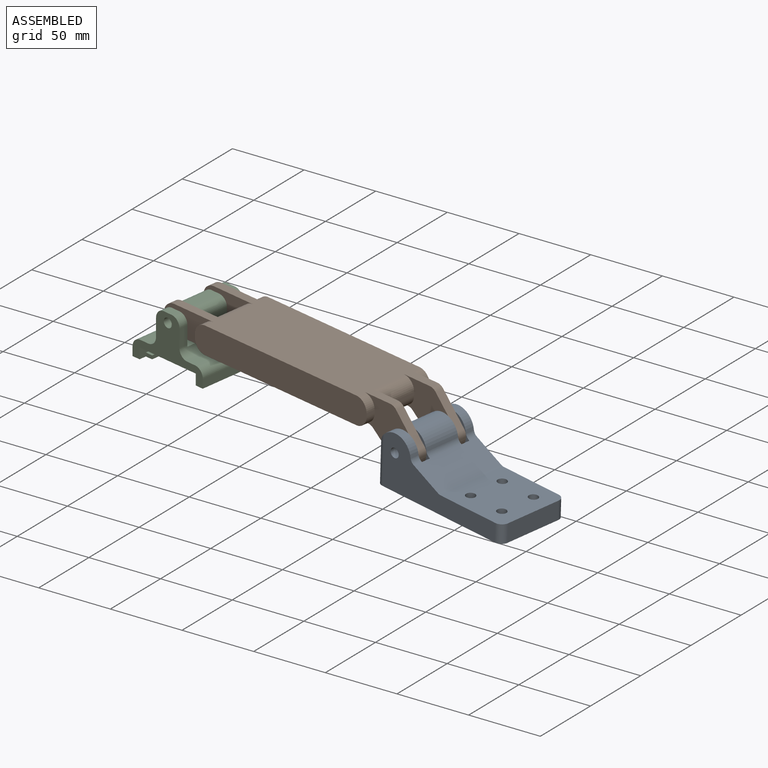
[diagram: assembled view]
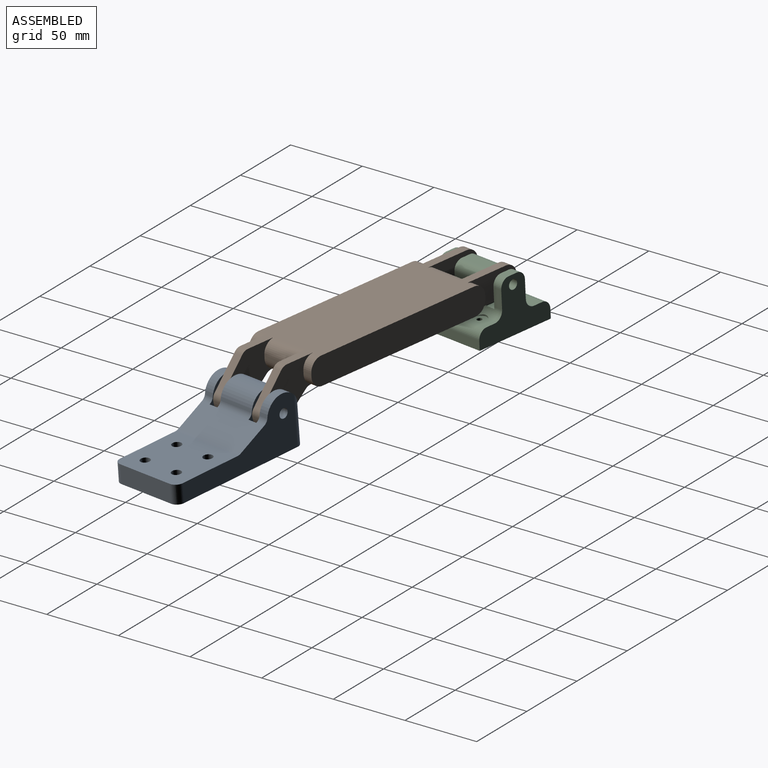
[diagram: assembled view, second angle]
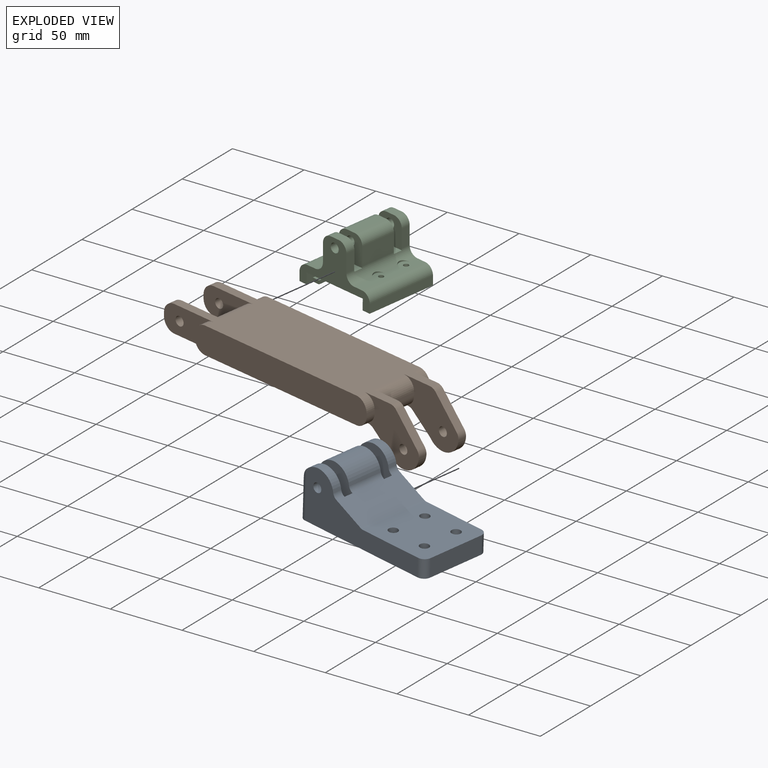
[diagram: exploded view]
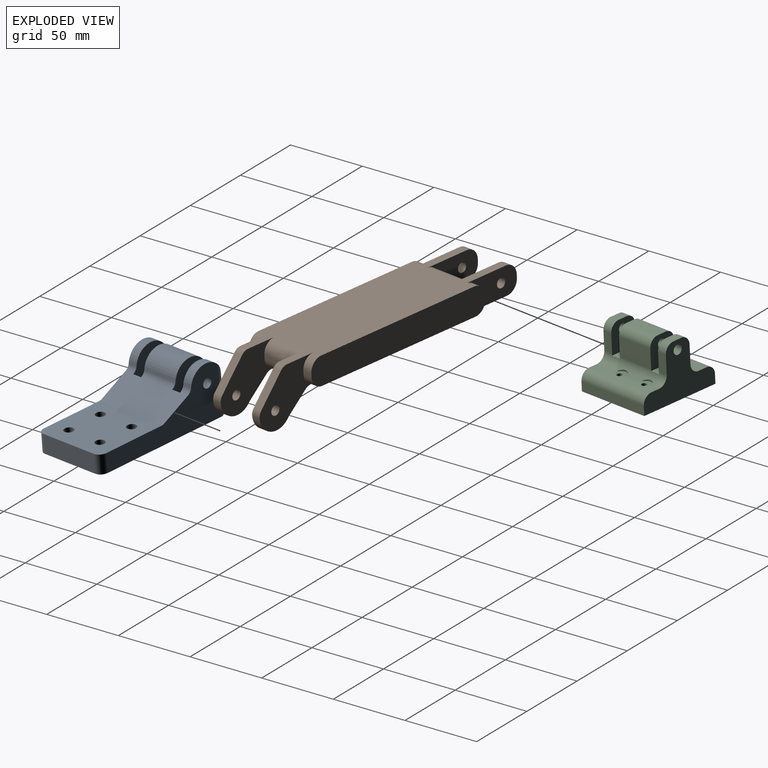
[diagram: exploded view, second angle]
ASSEMBLY  parts=3 mates=2
PART A: 32 faces, bbox 101.6x50.8x37.8 mm
  f0: cylinder r=12.7mm len=25.4mm, axis (0,1,0), area 956.6mm2, adj f4,f12,f16,f20
  f1: cylinder r=12.7mm len=25.24mm, axis (0,1,0), area 233.3mm2, adj f4,f10,f13,f21,f25
  f2: plane 50.8x20.03mm, normal (0.45,0,0.89), area 1136.4mm2, adj f9,f10,f11,f12,f13,f14,f15,f16
  f3: cylinder r=12.7mm len=25.24mm, axis (0,1,0), area 233.3mm2, adj f4,f9,f15,f22,f27
  f4: plane 48.26x12.58mm, normal (-0.99,0,0.14), area 474.3mm2, adj f0,f1,f3,f5,f11,f12,f13,f14
  f5: plane 40.64x12.7mm, normal (-1,0,0), area 516.1mm2, adj f4,f6,f25,f27
  f6: plane 101.6x50.8mm, normal (0,0,-1), area 5005.3mm2, adj f5,f7,f9,f10,f24,f25,f26,f27
  f7: plane 40.64x12.7mm, normal (1,0,0), area 516.1mm2, adj f6,f8,f24,f26
  f8: plane 50.8x49.59mm, normal (0,0,1), area 2374.4mm2, adj f7,f9,f10,f23,f24,f26,f28,f29
  f9: plane 91.44x37.76mm, normal (0,-1,0), area 1776.2mm2, adj f2,f3,f6,f8,f18,f22,f23,f26
  f10: plane 91.44x37.76mm, normal (0,1,0), area 1776.2mm2, adj f1,f2,f6,f8,f19,f21,f23,f24
  f11: cylinder r=15.88mm len=29.33mm, axis (0,1,0), area 250.1mm2, adj f2,f4,f12,f13
  f12: plane 29.33x28.6mm, normal (0,1,0), area 596.8mm2, adj f0,f2,f4,f11,f17,f20
  f13: plane 29.33x28.6mm, normal (0,-1,0), area 596.8mm2, adj f1,f2,f4,f11,f19,f21
  f14: cylinder r=15.88mm len=29.33mm, axis (0,1,0), area 250.1mm2, adj f2,f4,f15,f16
  f15: plane 29.33x28.6mm, normal (0,1,0), area 596.8mm2, adj f2,f3,f4,f14,f18,f22
  f16: plane 29.33x28.6mm, normal (0,-1,0), area 596.8mm2, adj f0,f2,f4,f14,f17,f20
  f17: cylinder r=3.26mm len=25.4mm, axis (0,1,0), area 520.9mm2, adj f12,f16
  f18: cylinder r=3.26mm len=6.53mm, axis (0,1,0), area 130.2mm2, adj f9,f15
  f19: cylinder r=3.26mm len=6.53mm, axis (0,1,0), area 130.2mm2, adj f10,f13
  f20: cylinder r=5.08mm len=25.4mm, axis (0,1,0), area 122mm2, adj f0,f2,f12,f16
  f21: cylinder r=5.08mm len=6.35mm, axis (0,1,0), area 30.5mm2, adj f1,f2,f10,f13
  f22: cylinder r=5.08mm len=6.35mm, axis (0,1,0), area 30.5mm2, adj f2,f3,f9,f15
  f23: cylinder r=5.08mm len=50.8mm, axis (0,-1,0), area 120.4mm2, adj f2,f8,f9,f10
  f24: cylinder r=5.08mm len=12.7mm, axis (0,0,1), area 101.3mm2, adj f6,f7,f8,f10
  f25: cylinder r=5.08mm len=33.66mm, axis (0,0,-1), area 186.3mm2, adj f1,f4,f5,f6,f10
  f26: cylinder r=5.08mm len=12.7mm, axis (0,0,-1), area 101.3mm2, adj f6,f7,f8,f9
  f27: cylinder r=5.08mm len=33.66mm, axis (0,0,1), area 186.3mm2, adj f3,f4,f5,f6,f9
  f28: cylinder r=3.26mm len=12.7mm, axis (0,0,1), area 260.4mm2, adj f6,f8
  f29: cylinder r=3.26mm len=12.7mm, axis (0,0,1), area 260.4mm2, adj f6,f8
  f30: cylinder r=3.26mm len=12.7mm, axis (0,0,1), area 260.4mm2, adj f6,f8
  f31: cylinder r=3.26mm len=12.7mm, axis (0,0,1), area 260.4mm2, adj f6,f8
PART B: 52 faces, bbox 207.5x50.8x38.1 mm
  f0: cylinder r=8.38mm len=25.65mm, axis (0,1,0), area 337.8mm2, adj f1,f12,f27,f41
  f1: plane 25.65x2.29mm, normal (1,0,0), area 58.6mm2, adj f0,f2,f27,f41
  f2: cylinder r=8.38mm len=25.65mm, axis (0,1,0), area 337.8mm2, adj f1,f16,f27,f41
  f3: cylinder r=8.38mm len=25.65mm, axis (0,1,0), area 337.8mm2, adj f4,f16,f26,f38
  f4: plane 25.65x2.29mm, normal (-1,0,0), area 58.6mm2, adj f3,f5,f26,f38
  f5: cylinder r=8.38mm len=25.65mm, axis (0,1,0), area 337.8mm2, adj f4,f12,f26,f38
  f6: cylinder r=8.38mm len=8.38mm, axis (0,1,0), area 85.3mm2, adj f7,f12,f21,f28
  f7: plane 6.48x2.29mm, normal (1,0,0), area 14.8mm2, adj f6,f8,f21,f28
  f8: cylinder r=8.38mm len=8.38mm, axis (0,1,0), area 85.3mm2, adj f7,f16,f21,f28
  f9: cylinder r=8.38mm len=8.38mm, axis (0,1,0), area 85.3mm2, adj f10,f16,f21,f25
  f10: plane 6.48x2.29mm, normal (-1,0,0), area 14.8mm2, adj f9,f11,f21,f25
  f11: cylinder r=8.38mm len=8.38mm, axis (0,1,0), area 85.3mm2, adj f10,f12,f21,f25
  f12: plane 175.81x50.8mm, normal (0,0,-1), area 6889.8mm2, adj f0,f5,f6,f11,f13,f19,f20,f21
  f13: cylinder r=8.38mm len=8.38mm, axis (0,1,0), area 85.3mm2, adj f12,f14,f20,f40
  f14: plane 6.48x2.29mm, normal (1,0,0), area 14.8mm2, adj f13,f15,f20,f40
  f15: cylinder r=8.38mm len=8.38mm, axis (0,1,0), area 85.3mm2, adj f14,f16,f20,f40
  f16: plane 157.68x50.8mm, normal (0,0,1), area 6668.8mm2, adj f2,f3,f8,f9,f15,f17,f20,f21
  f17: cylinder r=8.38mm len=8.38mm, axis (0,1,0), area 85.3mm2, adj f16,f18,f20,f39
  f18: plane 6.48x2.29mm, normal (-1,0,0), area 14.8mm2, adj f17,f19,f20,f39
  f19: cylinder r=8.38mm len=8.38mm, axis (0,1,0), area 85.3mm2, adj f12,f18,f20,f39
  f20: plane 139.7x19.05mm, normal (0,-1,0), area 2601mm2, adj f12,f13,f14,f15,f16,f17,f18,f19
  f21: plane 139.7x19.05mm, normal (0,1,0), area 2601mm2, adj f6,f7,f8,f9,f10,f11,f12,f16
  f22: cylinder r=8.38mm len=8.38mm, axis (0,1,0), area 80.3mm2, adj f16,f23,f25,f26
  f23: plane 6.1x2.29mm, normal (-1,0,0), area 13.9mm2, adj f22,f24,f25,f26
  f24: cylinder r=8.38mm len=8.38mm, axis (0,1,0), area 80.3mm2, adj f12,f23,f25,f26
  f25: plane 40.13x19.05mm, normal (0,1,0), area 571.4mm2, adj f9,f10,f11,f12,f16,f22,f23,f24
  f26: plane 40.13x19.05mm, normal (0,-1,0), area 571.4mm2, adj f3,f4,f5,f12,f16,f22,f23,f24
  f27: plane 44.44x38.1mm, normal (0,-1,0), area 941.8mm2, adj f0,f1,f2,f12,f16,f29,f30,f31
  f28: plane 44.44x38.1mm, normal (0,1,0), area 941.8mm2, adj f6,f7,f8,f12,f16,f29,f30,f31
  f29: cylinder r=6.35mm len=6.1mm, axis (0,1,0), area 33mm2, adj f12,f27,f28,f30
  f30: plane 19.46x16.97mm, normal (0.75,0,-0.66), area 157.4mm2, adj f27,f28,f29,f31
  f31: cylinder r=6.35mm len=6.1mm, axis (0,1,0), area 30.2mm2, adj f27,f28,f30,f32
  f32: cylinder r=12.7mm len=22.87mm, axis (0,1,0), area 188.8mm2, adj f27,f28,f31,f33
  f33: plane 14.42x12.39mm, normal (-0.65,0,0.76), area 115.9mm2, adj f27,f28,f32,f34
  f34: cylinder r=6.35mm len=6.1mm, axis (0,1,0), area 27.5mm2, adj f16,f27,f28,f33
  f35: cylinder r=8.38mm len=8.38mm, axis (0,1,0), area 80.3mm2, adj f16,f36,f38,f39
  f36: plane 6.1x2.29mm, normal (-1,0,0), area 13.9mm2, adj f35,f37,f38,f39
  f37: cylinder r=8.38mm len=8.38mm, axis (0,1,0), area 80.3mm2, adj f12,f36,f38,f39
  f38: plane 40.13x19.05mm, normal (0,1,0), area 571.4mm2, adj f3,f4,f5,f12,f16,f35,f36,f37
  f39: plane 40.13x19.05mm, normal (0,-1,0), area 571.4mm2, adj f12,f16,f17,f18,f19,f35,f36,f37
  f40: plane 44.44x38.1mm, normal (0,-1,0), area 941.8mm2, adj f12,f13,f14,f15,f16,f42,f43,f44
  f41: plane 44.44x38.1mm, normal (0,1,0), area 941.8mm2, adj f0,f1,f2,f12,f16,f42,f43,f44
  f42: cylinder r=6.35mm len=6.1mm, axis (0,1,0), area 33mm2, adj f12,f40,f41,f43
  f43: plane 19.46x16.97mm, normal (0.75,0,-0.66), area 157.4mm2, adj f40,f41,f42,f44
  f44: cylinder r=6.35mm len=6.1mm, axis (0,1,0), area 30.2mm2, adj f40,f41,f43,f45
  f45: cylinder r=12.7mm len=22.87mm, axis (0,1,0), area 188.8mm2, adj f40,f41,f44,f46
  f46: plane 14.42x12.39mm, normal (-0.65,0,0.76), area 115.9mm2, adj f40,f41,f45,f47
  f47: cylinder r=6.35mm len=6.1mm, axis (0,1,0), area 27.5mm2, adj f16,f40,f41,f46
  f48: cylinder r=3.26mm len=6.53mm, axis (0,1,0), area 125mm2, adj f40,f41
  f49: cylinder r=3.26mm len=6.53mm, axis (0,1,0), area 125mm2, adj f27,f28
  f50: cylinder r=3.26mm len=6.53mm, axis (0,1,0), area 125mm2, adj f38,f39
  f51: cylinder r=3.26mm len=6.53mm, axis (0,1,0), area 125mm2, adj f25,f26
PART C: 59 faces, bbox 57.2x50.8x38.1 mm
  f0: cylinder r=6.35mm len=50.8mm, axis (0,1,0), area 440.4mm2, adj f8,f16,f22,f28,f29,f37,f39,f40
  f1: cylinder r=1.78mm len=5.08mm, axis (0,0,-1), area 56.8mm2, adj f29,f47
  f2: cylinder r=6.35mm len=50.8mm, axis (0,1,0), area 439.2mm2, adj f8,f17,f23,f34,f35,f37,f39,f40
  f3: cylinder r=1.78mm len=5.08mm, axis (0,0,-1), area 56.8mm2, adj f34,f47
  f4: cylinder r=1.78mm len=5.08mm, axis (0,0,-1), area 56.8mm2, adj f34,f47
  f5: cylinder r=1.78mm len=5.08mm, axis (0,0,-1), area 56.8mm2, adj f29,f47
  f6: plane 9.91x2.54mm, normal (-1,0,0), area 25.2mm2, adj f9,f10,f52,f53
  f7: plane 9.91x2.54mm, normal (1,0,0), area 25.2mm2, adj f9,f10,f51,f54
  f8: plane 57.15x38.1mm, normal (0,-1,0), area 810.5mm2, adj f0,f2,f9,f26,f27,f28,f29,f30
  f9: plane 57.15x50.8mm, normal (0,0,-1), area 1216.9mm2, adj f6,f7,f8,f11,f12,f13,f31,f32
  f10: plane 45.72x40.64mm, normal (0,0,1), area 404mm2, adj f6,f7,f11,f12,f13,f45,f46,f48
  f11: plane 9.92x2.54mm, normal (-1,0,0), area 25.2mm2, adj f9,f10,f50,f52
  f12: plane 9.92x2.54mm, normal (1,0,0), area 25.2mm2, adj f9,f10,f49,f51
  f13: plane 24.94x2.54mm, normal (0,-1,0), area 63.4mm2, adj f9,f10,f49,f50
  f14: plane 25.4x6.35mm, normal (0,0,1), area 161.3mm2, adj f15,f18,f40,f44
  f15: cylinder r=6.35mm len=25.4mm, axis (0,1,0), area 253.4mm2, adj f14,f16,f40,f44
  f16: plane 25.4x12.7mm, normal (-1,0,0), area 322.6mm2, adj f0,f15,f40,f44
  f17: plane 25.4x12.7mm, normal (1,0,0), area 322.6mm2, adj f2,f18,f40,f44
  f18: cylinder r=6.35mm len=25.4mm, axis (0,1,0), area 253.4mm2, adj f14,f17,f40,f44
  f19: cylinder r=3.26mm len=25.4mm, axis (0,1,0), area 520.9mm2, adj f40,f44
  f20: plane 6.35x6.35mm, normal (0,0,1), area 40.3mm2, adj f21,f24,f37,f41
  f21: cylinder r=6.35mm len=6.35mm, axis (0,1,0), area 63.3mm2, adj f20,f22,f37,f41
  f22: plane 12.7x6.35mm, normal (-1,0,0), area 80.6mm2, adj f0,f21,f37,f41
  f23: plane 12.7x6.35mm, normal (1,0,0), area 80.6mm2, adj f2,f24,f37,f41
  f24: cylinder r=6.35mm len=6.35mm, axis (0,1,0), area 63.3mm2, adj f20,f23,f37,f41
  f25: cylinder r=3.26mm len=6.53mm, axis (0,1,0), area 130.2mm2, adj f37,f41
  f26: plane 6.35x6.35mm, normal (0,0,1), area 40.3mm2, adj f8,f27,f36,f43
  f27: cylinder r=6.35mm len=6.35mm, axis (0,1,0), area 63.3mm2, adj f8,f26,f28,f43
  f28: plane 12.7x6.35mm, normal (-1,0,0), area 80.6mm2, adj f0,f8,f27,f43
  f29: plane 50.8x9.78mm, normal (0,0,1), area 350.8mm2, adj f0,f1,f5,f8,f30,f37,f55,f58
  f30: cylinder r=6.35mm len=50.8mm, axis (0,1,0), area 506.7mm2, adj f8,f29,f31,f37
  f31: plane 50.8x6.35mm, normal (-1,0,0), area 322.6mm2, adj f8,f9,f30,f37
  f32: plane 50.8x6.35mm, normal (1,0,0), area 322.6mm2, adj f8,f9,f33,f37
  f33: cylinder r=6.35mm len=50.8mm, axis (0,1,0), area 506.7mm2, adj f8,f32,f34,f37
  f34: plane 50.8x9.84mm, normal (0,0,1), area 351.9mm2, adj f2,f3,f4,f8,f33,f37,f56,f57
  f35: plane 12.7x6.35mm, normal (1,0,0), area 80.6mm2, adj f2,f8,f36,f43
  f36: cylinder r=6.35mm len=6.35mm, axis (0,1,0), area 63.3mm2, adj f8,f26,f35,f43
  f37: plane 57.15x38.1mm, normal (0,1,0), area 1158.9mm2, adj f0,f2,f9,f20,f21,f22,f23,f24
  f38: cylinder r=3.26mm len=6.53mm, axis (0,1,0), area 130.2mm2, adj f8,f43
  f39: plane 19.31x6.35mm, normal (0,0,1), area 122.6mm2, adj f0,f2,f40,f41
  f40: plane 20.32x19.31mm, normal (0,1,0), area 336.4mm2, adj f0,f2,f14,f15,f16,f17,f18,f19
  f41: plane 20.32x19.31mm, normal (0,-1,0), area 336.4mm2, adj f0,f2,f20,f21,f22,f23,f24,f25
  f42: plane 19.31x6.35mm, normal (0,0,1), area 122.6mm2, adj f0,f2,f43,f44
  f43: plane 20.32x19.31mm, normal (0,1,0), area 336.4mm2, adj f0,f2,f26,f27,f28,f35,f36,f38
  f44: plane 20.32x19.31mm, normal (0,-1,0), area 336.4mm2, adj f0,f2,f14,f15,f16,f17,f18,f19
  f45: plane 45.72x7.62mm, normal (1,0,0), area 245.2mm2, adj f8,f9,f10,f47,f48,f54
  f46: plane 45.72x7.62mm, normal (-1,0,0), area 245.2mm2, adj f8,f9,f10,f47,f48,f53
  f47: plane 45.72x45.72mm, normal (0,0,-1), area 2050.6mm2, adj f1,f3,f4,f5,f8,f45,f46,f48
  f48: plane 45.72x5.08mm, normal (0,-1,0), area 232.3mm2, adj f10,f45,f46,f47
  f49: cylinder r=5.08mm len=10.15mm, axis (0,0,1), area 58.9mm2, adj f9,f10,f12,f13
  f50: cylinder r=5.08mm len=10.15mm, axis (0,0,1), area 58.9mm2, adj f9,f10,f11,f13
  f51: cylinder r=5.08mm len=10.15mm, axis (0,0,1), area 39.2mm2, adj f7,f9,f10,f12
  f52: cylinder r=5.08mm len=10.15mm, axis (0,0,1), area 39.2mm2, adj f6,f9,f10,f11
  f53: plane 5.08x2.54mm, normal (0,-1,0), area 12.9mm2, adj f6,f9,f10,f46
  f54: plane 5.08x2.54mm, normal (0,-1,0), area 12.9mm2, adj f7,f9,f10,f45
  f55: cylinder r=5.08mm len=9.61mm, axis (0,0,-1), area 6.4mm2, adj f0,f29
  f56: cylinder r=5.08mm len=9.65mm, axis (0,0,-1), area 6.6mm2, adj f2,f34
  f57: cylinder r=5.08mm len=9.65mm, axis (0,0,-1), area 6.6mm2, adj f2,f34
  f58: cylinder r=5.08mm len=9.61mm, axis (0,0,-1), area 6.4mm2, adj f0,f29
PLACE A rot(axis=(0.16,0.3,-0.94),11deg) t=(151.36,45.77,51.07)mm
PLACE B rot(axis=(-1,0.09,0.01),178.4deg) t=(16.18,18.09,88.98)mm
PLACE C rot(axis=(0.15,0.14,-0.98),10.6deg) t=(-65.77,85.51,67.35)mm
MATE revolute C.f18 <-> B.f50  axis (-0.18,-0.98,-0.03) through (-71.22,34.22,91.34)mm
MATE revolute A.f0 <-> B.f32  axis (0.18,0.98,0.03) through (116.65,51.61,71.92)mm
